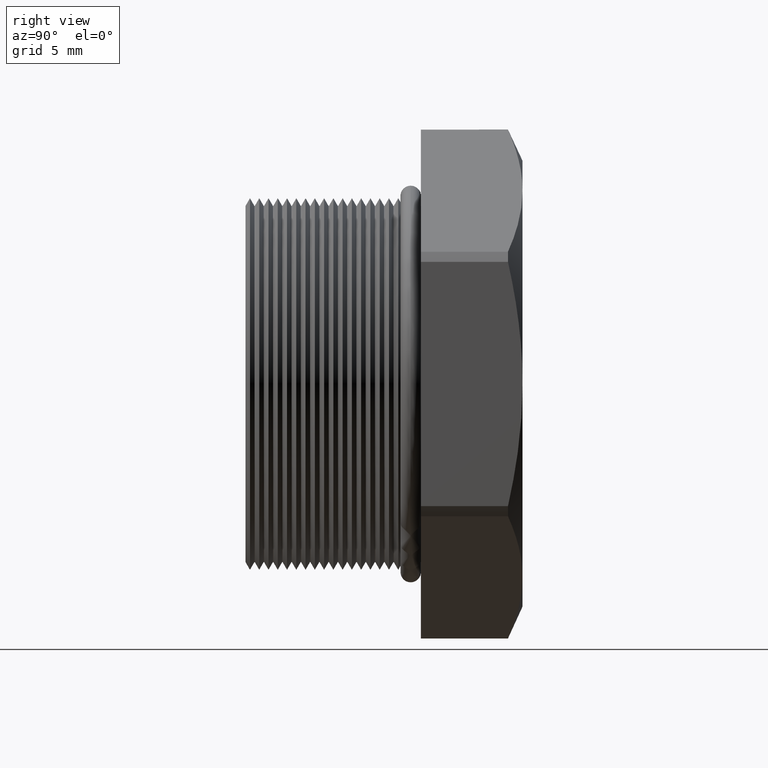
[diagram: clean part render]
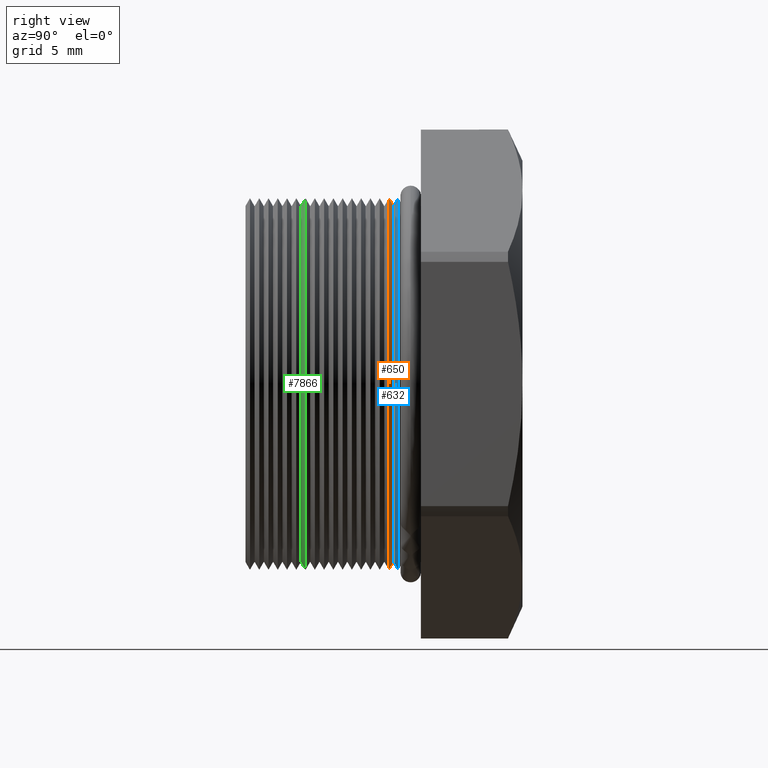
[diagram: same view with three faces highlighted in distinct colors, each labeled with its STEP entity id]
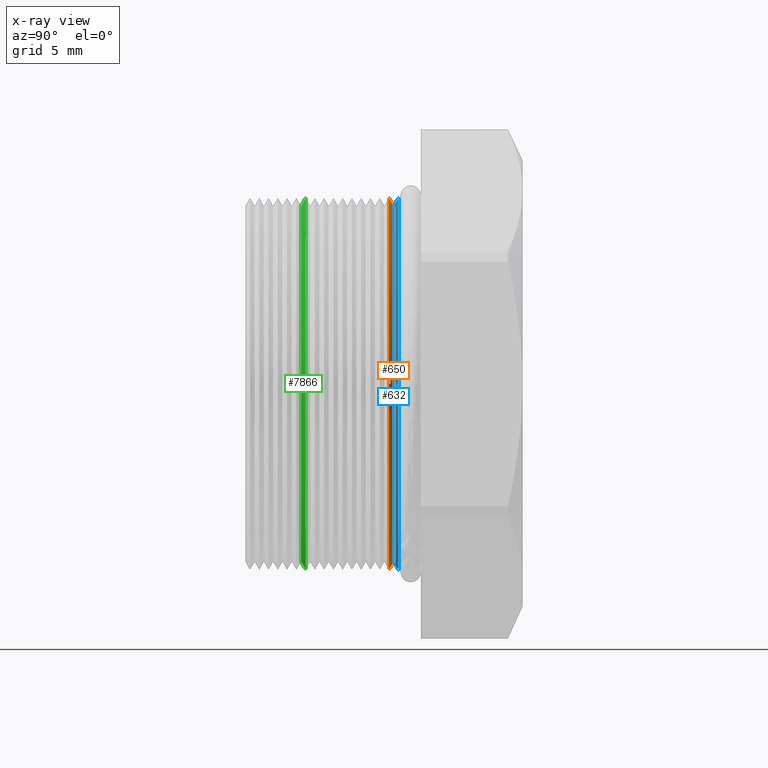
[diagram: x-ray of the same camera — body ghosted, the three highlighted faces saturated]
A machine part, right view with three faces highlighted in distinct colors.
The next image is the same camera in x-ray (body ghosted, the three faces saturated) — at least one of them is partly hidden behind the body in this view.
Their STEP definitions:

[orange] entity #650 — the highlighted conical surface has half-angle 60 deg.
#572 = VERTEX_POINT ( 'NONE', #2337 ) ;
#573 = VERTEX_POINT ( 'NONE', #2392 ) ;
#574 = ORIENTED_EDGE ( 'NONE', *, *, #575, .T. ) ;
#575 = EDGE_CURVE ( 'NONE', #573, #647, #2391, .T. ) ;
#588 = VERTEX_POINT ( 'NONE', #2365 ) ;
#629 = ORIENTED_EDGE ( 'NONE', *, *, #646, .T. ) ;
#630 = ORIENTED_EDGE ( 'NONE', *, *, #631, .F. ) ;
#631 = EDGE_CURVE ( 'NONE', #572, #588, #2472, .T. ) ;
#646 = EDGE_CURVE ( 'NONE', #647, #588, #2502, .T. ) ;
#647 = VERTEX_POINT ( 'NONE', #2497 ) ;
#650 = ADVANCED_FACE ( 'NONE', ( #2492 ), #2554, .T. ) ;
#651 = EDGE_LOOP ( 'NONE', ( #652, #574, #629, #630 ) ) ;
#652 = ORIENTED_EDGE ( 'NONE', *, *, #653, .T. ) ;
#653 = EDGE_CURVE ( 'NONE', #572, #573, #2549, .T. ) ;
#2337 = CARTESIAN_POINT ( 'NONE',  ( 0.0000000000000000000, 0.1791072448100089200, -0.3150000000000000000 ) ) ;
#2365 = CARTESIAN_POINT ( 'NONE',  ( 0.0000000000000000000, 0.1711548905829480000, -0.3287738815610546400 ) ) ;
#2388 = DIRECTION ( 'NONE',  ( 1.060575238724907500E-016, -0.4999999999999991100, 0.8660254037844391500 ) ) ;
#2389 = VECTOR ( 'NONE', #2388, 39.37007874015748100 ) ;
#2390 = CARTESIAN_POINT ( 'NONE',  ( 3.857637417314162700E-017, 0.1791072448100089200, 0.3150000000000000000 ) ) ;
#2391 = LINE ( 'NONE', #2390, #2389 ) ;
#2392 = CARTESIAN_POINT ( 'NONE',  ( 3.857637417314162700E-017, 0.1791072448100089200, 0.3150000000000000000 ) ) ;
#2469 = DIRECTION ( 'NONE',  ( 0.0000000000000000000, -0.4999999999999991100, -0.8660254037844391500 ) ) ;
#2470 = VECTOR ( 'NONE', #2469, 39.37007874015748100 ) ;
#2471 = CARTESIAN_POINT ( 'NONE',  ( 0.0000000000000000000, 0.1791072448100089200, -0.3150000000000000000 ) ) ;
#2472 = LINE ( 'NONE', #2471, #2470 ) ;
#2492 = FACE_OUTER_BOUND ( 'NONE', #651, .T. ) ;
#2497 = CARTESIAN_POINT ( 'NONE',  ( 4.026318816969966200E-017, 0.1711548905829480000, 0.3287738815610546400 ) ) ;
#2498 = DIRECTION ( 'NONE',  ( 0.0000000000000000000, 0.0000000000000000000, 1.000000000000000000 ) ) ;
#2499 = DIRECTION ( 'NONE',  ( -0.0000000000000000000, 1.000000000000000000, -0.0000000000000000000 ) ) ;
#2500 = CARTESIAN_POINT ( 'NONE',  ( 0.0000000000000000000, 0.1711548905829480000, 0.0000000000000000000 ) ) ;
#2501 = AXIS2_PLACEMENT_3D ( 'NONE', #2500, #2499, #2498 ) ;
#2502 = CIRCLE ( 'NONE', #2501, 0.3287738815610546400 ) ;
#2545 = DIRECTION ( 'NONE',  ( 0.0000000000000000000, 0.0000000000000000000, -1.000000000000000000 ) ) ;
#2546 = DIRECTION ( 'NONE',  ( 0.0000000000000000000, -1.000000000000000000, 0.0000000000000000000 ) ) ;
#2547 = CARTESIAN_POINT ( 'NONE',  ( 0.0000000000000000000, 0.1791072448100089200, 0.0000000000000000000 ) ) ;
#2548 = AXIS2_PLACEMENT_3D ( 'NONE', #2547, #2546, #2545 ) ;
#2549 = CIRCLE ( 'NONE', #2548, 0.3150000000000000000 ) ;
#2550 = DIRECTION ( 'NONE',  ( 0.0000000000000000000, 0.0000000000000000000, -1.000000000000000000 ) ) ;
#2551 = DIRECTION ( 'NONE',  ( 0.0000000000000000000, -1.000000000000000000, 0.0000000000000000000 ) ) ;
#2552 = CARTESIAN_POINT ( 'NONE',  ( 0.0000000000000000000, 0.1791072448100089200, 0.0000000000000000000 ) ) ;
#2553 = AXIS2_PLACEMENT_3D ( 'NONE', #2552, #2551, #2550 ) ;
#2554 = CONICAL_SURFACE ( 'NONE', #2553, 0.3150000000000000000, 1.047197551196598700 ) ;

[blue] entity #632 — the highlighted conical surface has half-angle 60 deg.
#614 = VERTEX_POINT ( 'NONE', #2441 ) ;
#615 = ORIENTED_EDGE ( 'NONE', *, *, #616, .F. ) ;
#616 = EDGE_CURVE ( 'NONE', #636, #614, #2440, .T. ) ;
#632 = ADVANCED_FACE ( 'NONE', ( #2468 ), #2467, .T. ) ;
#633 = EDGE_LOOP ( 'NONE', ( #634, #638, #641, #615 ) ) ;
#634 = ORIENTED_EDGE ( 'NONE', *, *, #635, .T. ) ;
#635 = EDGE_CURVE ( 'NONE', #636, #637, #2466, .T. ) ;
#636 = VERTEX_POINT ( 'NONE', #2518 ) ;
#637 = VERTEX_POINT ( 'NONE', #2517 ) ;
#638 = ORIENTED_EDGE ( 'NONE', *, *, #639, .T. ) ;
#639 = EDGE_CURVE ( 'NONE', #637, #640, #2516, .T. ) ;
#640 = VERTEX_POINT ( 'NONE', #2512 ) ;
#641 = ORIENTED_EDGE ( 'NONE', *, *, #642, .F. ) ;
#642 = EDGE_CURVE ( 'NONE', #614, #640, #2511, .T. ) ;
#2437 = DIRECTION ( 'NONE',  ( 0.0000000000000000000, 0.5000000000000008900, 0.8660254037844380400 ) ) ;
#2438 = VECTOR ( 'NONE', #2437, 39.37007874015748100 ) ;
#2439 = CARTESIAN_POINT ( 'NONE',  ( 0.0000000000000000000, 0.1875548905829480000, 0.3287738815610546400 ) ) ;
#2440 = LINE ( 'NONE', #2439, #2438 ) ;
#2441 = CARTESIAN_POINT ( 'NONE',  ( 4.026318816969966200E-017, 0.1875548905829480000, 0.3287738815610546400 ) ) ;
#2462 = DIRECTION ( 'NONE',  ( 0.0000000000000000000, 0.0000000000000000000, 1.000000000000000000 ) ) ;
#2463 = DIRECTION ( 'NONE',  ( -0.0000000000000000000, 1.000000000000000000, -0.0000000000000000000 ) ) ;
#2464 = CARTESIAN_POINT ( 'NONE',  ( 0.0000000000000000000, 0.1875548905829480000, 0.0000000000000000000 ) ) ;
#2465 = AXIS2_PLACEMENT_3D ( 'NONE', #2464, #2463, #2462 ) ;
#2466 = CIRCLE ( 'NONE', #2522, 0.3150000000000000000 ) ;
#2467 = CONICAL_SURFACE ( 'NONE', #2465, 0.3287738815610546400, 1.047197551196596700 ) ;
#2468 = FACE_OUTER_BOUND ( 'NONE', #633, .T. ) ;
#2507 = DIRECTION ( 'NONE',  ( 0.0000000000000000000, 0.0000000000000000000, 1.000000000000000000 ) ) ;
#2508 = DIRECTION ( 'NONE',  ( -0.0000000000000000000, 1.000000000000000000, -0.0000000000000000000 ) ) ;
#2509 = CARTESIAN_POINT ( 'NONE',  ( 0.0000000000000000000, 0.1875548905829480000, 0.0000000000000000000 ) ) ;
#2510 = AXIS2_PLACEMENT_3D ( 'NONE', #2509, #2508, #2507 ) ;
#2511 = CIRCLE ( 'NONE', #2510, 0.3287738815610546400 ) ;
#2512 = CARTESIAN_POINT ( 'NONE',  ( 0.0000000000000000000, 0.1875548905829480000, -0.3287738815610546400 ) ) ;
#2513 = DIRECTION ( 'NONE',  ( 1.060575238724906300E-016, 0.5000000000000008900, -0.8660254037844380400 ) ) ;
#2514 = VECTOR ( 'NONE', #2513, 39.37007874015748100 ) ;
#2515 = CARTESIAN_POINT ( 'NONE',  ( 4.026318816969965600E-017, 0.1875548905829480000, -0.3287738815610546400 ) ) ;
#2516 = LINE ( 'NONE', #2515, #2514 ) ;
#2517 = CARTESIAN_POINT ( 'NONE',  ( 0.0000000000000000000, 0.1796025363558870500, -0.3150000000000000000 ) ) ;
#2518 = CARTESIAN_POINT ( 'NONE',  ( 3.857637417314162700E-017, 0.1796025363558870500, 0.3150000000000000000 ) ) ;
#2519 = DIRECTION ( 'NONE',  ( 0.0000000000000000000, 0.0000000000000000000, 1.000000000000000000 ) ) ;
#2520 = DIRECTION ( 'NONE',  ( -0.0000000000000000000, 1.000000000000000000, -0.0000000000000000000 ) ) ;
#2521 = CARTESIAN_POINT ( 'NONE',  ( 0.0000000000000000000, 0.1796025363558870500, 0.0000000000000000000 ) ) ;
#2522 = AXIS2_PLACEMENT_3D ( 'NONE', #2521, #2520, #2519 ) ;

[green] entity #7866 — the highlighted conical surface has half-angle 60 deg.
#5928 = DIRECTION ( 'NONE',  ( 0.0000000000000000000, 0.5000000000000008900, 0.8660254037844380400 ) ) ;
#5929 = VECTOR ( 'NONE', #5928, 39.37007874015748100 ) ;
#5930 = CARTESIAN_POINT ( 'NONE',  ( 0.0000000000000000000, 0.02355489058294799000, 0.3287738815610546400 ) ) ;
#5931 = LINE ( 'NONE', #5930, #5929 ) ;
#5940 = CARTESIAN_POINT ( 'NONE',  ( 4.026318816969966200E-017, 0.02355489058294799000, 0.3287738815610546400 ) ) ;
#5941 = DIRECTION ( 'NONE',  ( 0.0000000000000000000, 0.0000000000000000000, 1.000000000000000000 ) ) ;
#5942 = DIRECTION ( 'NONE',  ( -0.0000000000000000000, 1.000000000000000000, -0.0000000000000000000 ) ) ;
#5943 = CARTESIAN_POINT ( 'NONE',  ( 0.0000000000000000000, 0.02355489058294799000, 0.0000000000000000000 ) ) ;
#5944 = AXIS2_PLACEMENT_3D ( 'NONE', #5943, #5942, #5941 ) ;
#5945 = CIRCLE ( 'NONE', #5944, 0.3287738815610546400 ) ;
#5946 = CARTESIAN_POINT ( 'NONE',  ( 0.0000000000000000000, 0.02355489058294799000, -0.3287738815610546400 ) ) ;
#5947 = DIRECTION ( 'NONE',  ( 1.060575238724906300E-016, 0.5000000000000008900, -0.8660254037844380400 ) ) ;
#5948 = VECTOR ( 'NONE', #5947, 39.37007874015748100 ) ;
#5949 = CARTESIAN_POINT ( 'NONE',  ( 4.026318816969965600E-017, 0.02355489058294799000, -0.3287738815610546400 ) ) ;
#5950 = LINE ( 'NONE', #5949, #5948 ) ;
#5951 = CARTESIAN_POINT ( 'NONE',  ( 0.0000000000000000000, 0.01560253635588704600, -0.3150000000000000000 ) ) ;
#5952 = CARTESIAN_POINT ( 'NONE',  ( 3.857637417314162700E-017, 0.01560253635588704600, 0.3150000000000000000 ) ) ;
#5953 = DIRECTION ( 'NONE',  ( 0.0000000000000000000, 0.0000000000000000000, 1.000000000000000000 ) ) ;
#5954 = DIRECTION ( 'NONE',  ( -0.0000000000000000000, 1.000000000000000000, -0.0000000000000000000 ) ) ;
#5955 = CARTESIAN_POINT ( 'NONE',  ( 0.0000000000000000000, 0.01560253635588704600, 0.0000000000000000000 ) ) ;
#5956 = AXIS2_PLACEMENT_3D ( 'NONE', #5955, #5954, #5953 ) ;
#5957 = DIRECTION ( 'NONE',  ( 0.0000000000000000000, 0.0000000000000000000, 1.000000000000000000 ) ) ;
#5958 = DIRECTION ( 'NONE',  ( -0.0000000000000000000, 1.000000000000000000, -0.0000000000000000000 ) ) ;
#5959 = CARTESIAN_POINT ( 'NONE',  ( 0.0000000000000000000, 0.02355489058294799000, 0.0000000000000000000 ) ) ;
#5960 = AXIS2_PLACEMENT_3D ( 'NONE', #5959, #5958, #5957 ) ;
#5961 = CONICAL_SURFACE ( 'NONE', #5960, 0.3287738815610546400, 1.047197551196596700 ) ;
#5962 = CIRCLE ( 'NONE', #5956, 0.3150000000000000000 ) ;
#5963 = FACE_OUTER_BOUND ( 'NONE', #7867, .T. ) ;
#7850 = ORIENTED_EDGE ( 'NONE', *, *, #7851, .F. ) ;
#7851 = EDGE_CURVE ( 'NONE', #7870, #7877, #5931, .T. ) ;
#7866 = ADVANCED_FACE ( 'NONE', ( #5963 ), #5961, .T. ) ;
#7867 = EDGE_LOOP ( 'NONE', ( #7868, #7872, #7875, #7850 ) ) ;
#7868 = ORIENTED_EDGE ( 'NONE', *, *, #7869, .T. ) ;
#7869 = EDGE_CURVE ( 'NONE', #7870, #7871, #5962, .T. ) ;
#7870 = VERTEX_POINT ( 'NONE', #5952 ) ;
#7871 = VERTEX_POINT ( 'NONE', #5951 ) ;
#7872 = ORIENTED_EDGE ( 'NONE', *, *, #7873, .T. ) ;
#7873 = EDGE_CURVE ( 'NONE', #7871, #7874, #5950, .T. ) ;
#7874 = VERTEX_POINT ( 'NONE', #5946 ) ;
#7875 = ORIENTED_EDGE ( 'NONE', *, *, #7876, .F. ) ;
#7876 = EDGE_CURVE ( 'NONE', #7877, #7874, #5945, .T. ) ;
#7877 = VERTEX_POINT ( 'NONE', #5940 ) ;